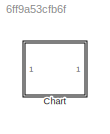
MODEL slx_6ff9a53cfb6f
KIND model
CONFIG AbsTol = auto
CONFIG EnableMultiTasking = off
CONFIG FixedStep = auto
CONFIG MaxStep = auto
CONFIG MinStep = auto
CONFIG RelTol = 1e-3
CONFIG SampleTimeConstraint = Unconstrained
CONFIG Solver = VariableStepAuto
CONFIG SolverName = VariableStepAuto
CONFIG StartTime = 0.0
CONFIG StopTime = 0.1
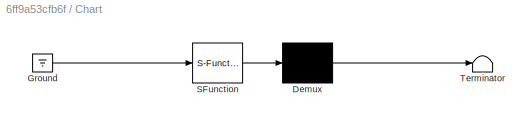
BLOCK [SubSystem] Chart
  ErrorFcn = Stateflow.Translate.translate
  PermitHierarchicalResolution = ExplicitOnly
  Ports = []
  RequestExecContextInheritance = off
  SFBlockType = Chart
  TreatAsAtomicUnit = on
BLOCK [Demux] Chart/ Demux 
  Outputs = 1
  Ports = [1, 1]
BLOCK [Ground] Chart/ Ground 
BLOCK [S-Function] Chart/ SFunction 
  EnableBusSupport = on
  FunctionName = sf_sfun
  PortCounts = [1 1]
  Ports = [1, 1]
  SFcnIsStateOwnerBlock = off
  SFunctionDeploymentMode = off
  Tag = Stateflow S-Function Junctions4_2018a 3
BLOCK [Terminator] Chart/ Terminator 
CHART Chart states=6 transitions=4
  STATE_LABEL 'A\nen:f("enA")\ndu:f("duA")\nex:f("exA")'
  STATE_LABEL 'A1\nen:f("enA1")\nex:f("exA1")'
  STATE_LABEL 'A1\nen:f("enA1")\nex:f("exA1")'
  STATE_LABEL 'C\nen:f("enC")\nex:f("exC")'
  STATE_LABEL 'C2\nen:f("enC2")\nex:f("exC2")'
  STATE_LABEL 'C2\nen:f("enC2")\nex:f("exC2")'
  STATE_LABEL 'B\nen:f("enB")\nex:f("exB")'
  STATE_LABEL 'f(s)'
  STATE_LABEL 'SCRIPT:\nfunction f(s)\n    fprintf(s+"\\n");'
